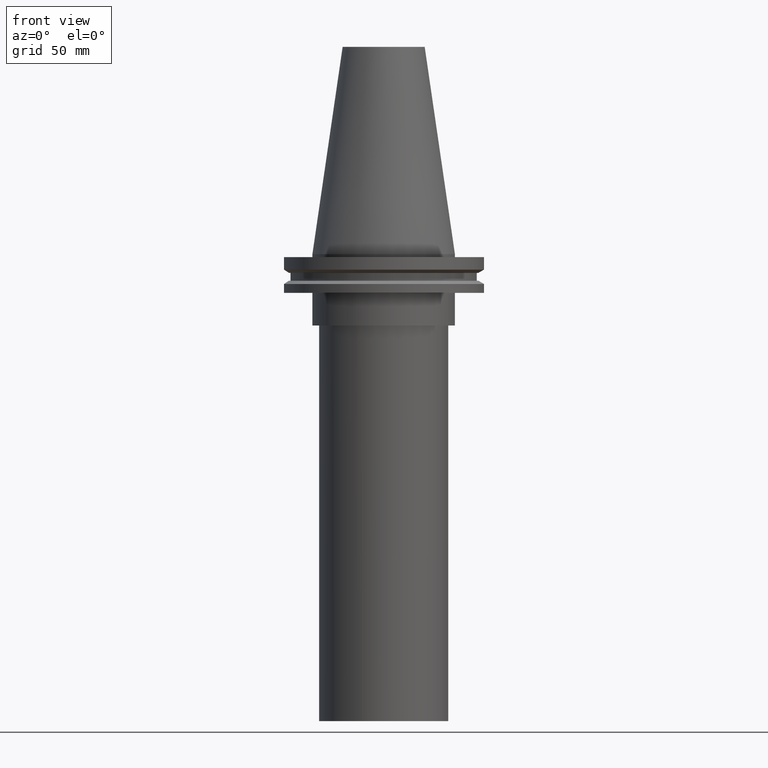
[diagram: clean part render]
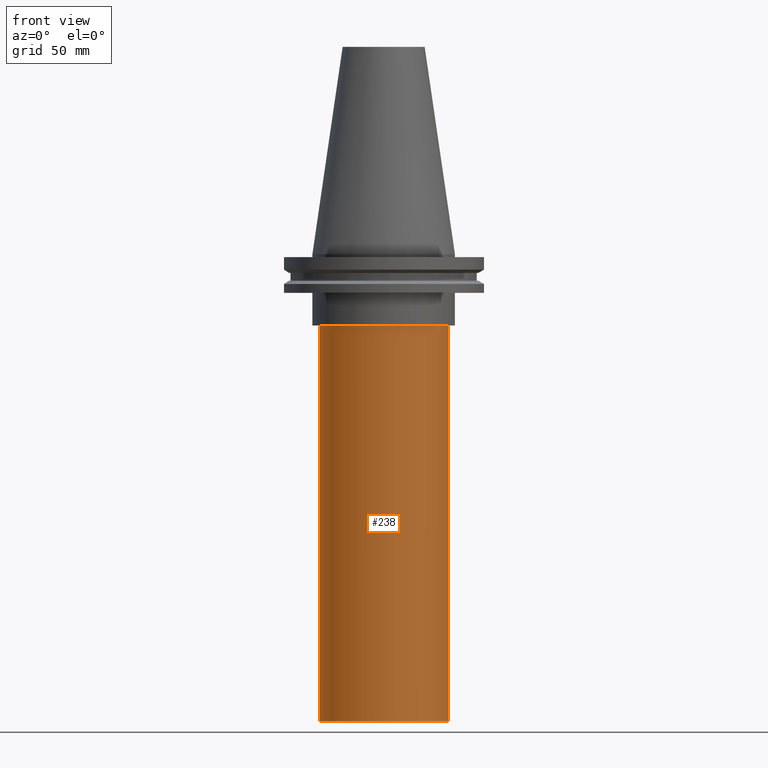
[diagram: same view with one face highlighted and labeled with its STEP entity id]
A machine part, front view. The second image highlights one B-rep face of the part: STEP entity #238.
In plain terms, the highlighted cylindrical surface (bore or boss wall) has radius 31.635 mm, axis along (-0, -0, 1).
Its self-contained STEP definition (entity closure, byte-faithful):
#10 = FACE_OUTER_BOUND ( 'NONE', #38, .T. ) ;
#24 = EDGE_LOOP ( 'NONE', ( #197 ) ) ;
#34 = CARTESIAN_POINT ( 'NONE',  ( 31.63500000000000512, 0.000000000000000000, -35.00000000000000000 ) ) ;
#37 = CARTESIAN_POINT ( 'NONE',  ( 0.000000000000000000, 0.000000000000000000, -228.9999999999999716 ) ) ;
#38 = EDGE_LOOP ( 'NONE', ( #193 ) ) ;
#72 = FACE_OUTER_BOUND ( 'NONE', #24, .T. ) ;
#101 = DIRECTION ( 'NONE',  ( -0.000000000000000000, -0.000000000000000000, 1.000000000000000000 ) ) ;
#115 = CIRCLE ( 'NONE', #281, 31.63500000000000512 ) ;
#132 = EDGE_CURVE ( 'NONE', #268, #268, #287, .T. ) ;
#134 = CYLINDRICAL_SURFACE ( 'NONE', #189, 31.63500000000000512 ) ;
#142 = CARTESIAN_POINT ( 'NONE',  ( 0.000000000000000000, 0.000000000000000000, 0.000000000000000000 ) ) ;
#150 = AXIS2_PLACEMENT_3D ( 'NONE', #217, #246, #194 ) ;
#189 = AXIS2_PLACEMENT_3D ( 'NONE', #142, #374, #267 ) ;
#193 = ORIENTED_EDGE ( 'NONE', *, *, #132, .F. ) ;
#194 = DIRECTION ( 'NONE',  ( 1.000000000000000000, 0.000000000000000000, 0.000000000000000000 ) ) ;
#197 = ORIENTED_EDGE ( 'NONE', *, *, #204, .T. ) ;
#204 = EDGE_CURVE ( 'NONE', #213, #213, #115, .T. ) ;
#213 = VERTEX_POINT ( 'NONE', #299 ) ;
#217 = CARTESIAN_POINT ( 'NONE',  ( 0.000000000000000000, 0.000000000000000000, -35.00000000000000000 ) ) ;
#238 = ADVANCED_FACE ( 'NONE', ( #10, #72 ), #134, .T. ) ;
#246 = DIRECTION ( 'NONE',  ( -0.000000000000000000, -0.000000000000000000, 1.000000000000000000 ) ) ;
#267 = DIRECTION ( 'NONE',  ( 1.000000000000000000, 0.000000000000000000, 0.000000000000000000 ) ) ;
#268 = VERTEX_POINT ( 'NONE', #34 ) ;
#270 = DIRECTION ( 'NONE',  ( 1.000000000000000000, 0.000000000000000000, 0.000000000000000000 ) ) ;
#281 = AXIS2_PLACEMENT_3D ( 'NONE', #37, #101, #270 ) ;
#287 = CIRCLE ( 'NONE', #150, 31.63500000000000512 ) ;
#299 = CARTESIAN_POINT ( 'NONE',  ( 31.63500000000000512, 0.000000000000000000, -228.9999999999999716 ) ) ;
#374 = DIRECTION ( 'NONE',  ( -0.000000000000000000, -0.000000000000000000, 1.000000000000000000 ) ) ;